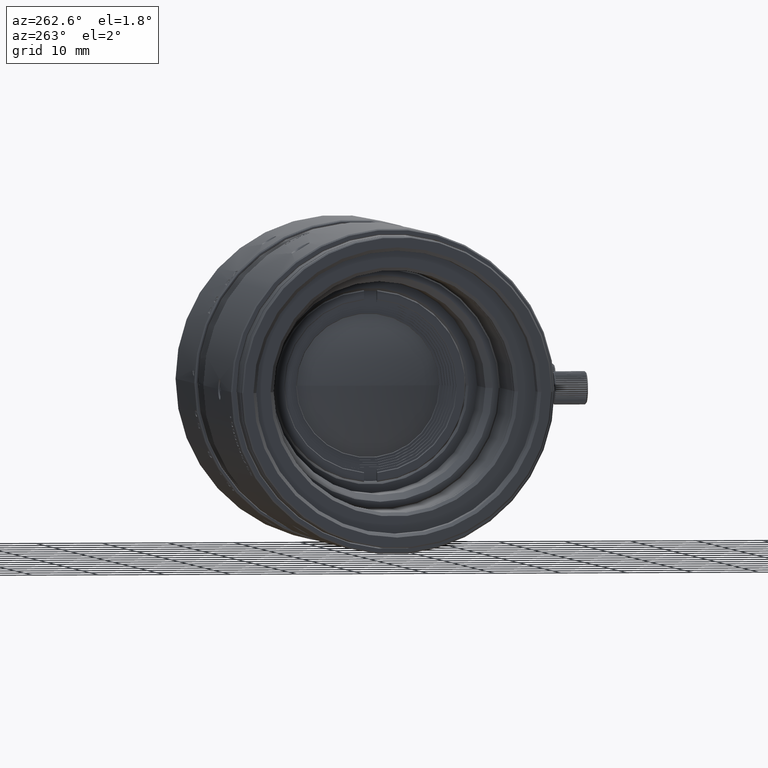
[diagram: clean part render]
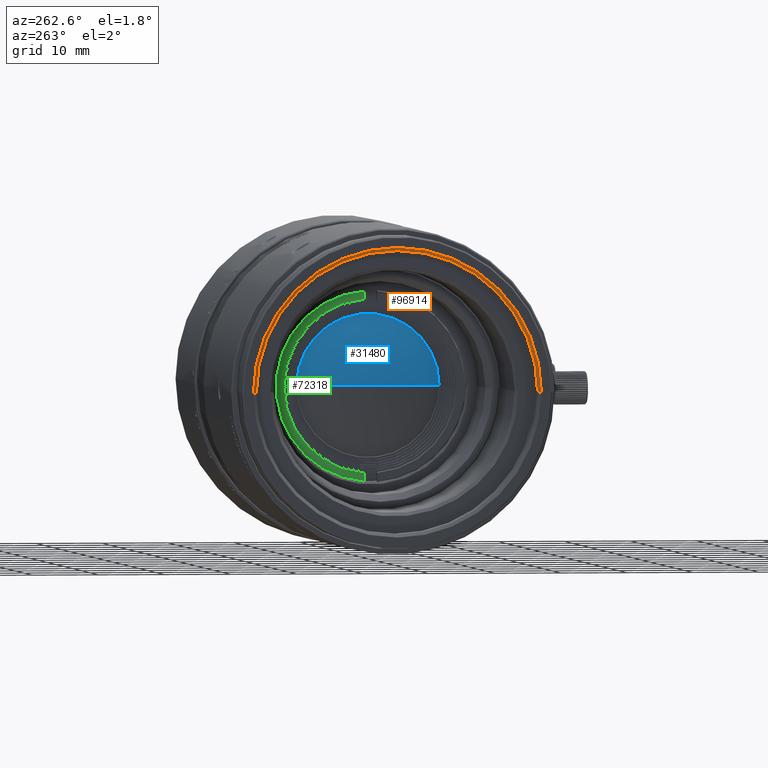
[diagram: same view with three faces highlighted in distinct colors, each labeled with its STEP entity id]
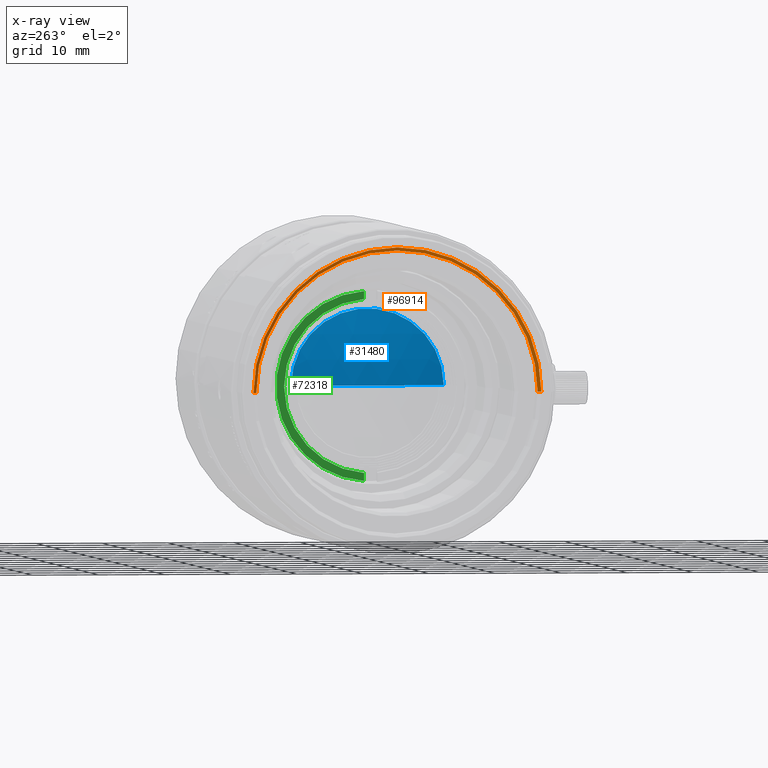
[diagram: x-ray of the same camera — body ghosted, the three highlighted faces saturated]
A machine part, auxiliary view with three faces highlighted in distinct colors.
The next image is the same camera in x-ray (body ghosted, the three faces saturated) — at least one of them is partly hidden behind the body in this view.
Their STEP definitions:

[orange] entity #96914 — the highlighted conical surface has half-angle 45 deg.
#2338 = EDGE_CURVE ( 'NONE', #101532, #88885, #62388, .T. ) ;
#4753 = EDGE_CURVE ( 'NONE', #37352, #88885, #114750, .T. ) ;
#6278 = ORIENTED_EDGE ( 'NONE', *, *, #117313, .F. ) ;
#8149 = DIRECTION ( 'NONE',  ( -1.000000000000000000, -9.356645475057149723E-23, -3.595346242946000312E-12 ) ) ;
#20855 = AXIS2_PLACEMENT_3D ( 'NONE', #81777, #8149, #103691 ) ;
#23181 = DIRECTION ( 'NONE',  ( 0.000000000000000000, 1.000000000000000000, 4.856461817810000820E-14 ) ) ;
#28233 = CARTESIAN_POINT ( 'NONE',  ( -72.88699999995999690, 0.000000000000000000, 7.389644453273999594E-13 ) ) ;
#35596 = VECTOR ( 'NONE', #88654, 1000.000000000000000 ) ;
#37352 = VERTEX_POINT ( 'NONE', #53247 ) ;
#42020 = CARTESIAN_POINT ( 'NONE',  ( -73.38700000000000045, 21.80000000000000071, -4.466453821071000241E-10 ) ) ;
#42090 = ORIENTED_EDGE ( 'NONE', *, *, #2338, .F. ) ;
#43106 = CARTESIAN_POINT ( 'NONE',  ( -72.88700000000000045, 21.30000000000000071, -5.642720510269000508E-10 ) ) ;
#45497 = EDGE_LOOP ( 'NONE', ( #108666, #42090, #99475, #6278 ) ) ;
#53247 = CARTESIAN_POINT ( 'NONE',  ( -72.88700000000000045, -21.30000000000000071, 2.770821754596000143E-10 ) ) ;
#57497 = CARTESIAN_POINT ( 'NONE',  ( -73.38700000000000045, 21.80000000000000071, -4.466453821071000241E-10 ) ) ;
#60078 = DIRECTION ( 'NONE',  ( -1.000000000000000000, 1.244905023412578241E-25, -3.595346242946000312E-12 ) ) ;
#60948 = CARTESIAN_POINT ( 'NONE',  ( -72.88700000000000045, -21.30000000000000071, 2.770821754596000143E-10 ) ) ;
#62388 = CIRCLE ( 'NONE', #118874, 21.79999999998999627 ) ;
#65229 = VECTOR ( 'NONE', #66581, 1000.000000000000000 ) ;
#66581 = DIRECTION ( 'NONE',  ( -0.7071067811864980568, -0.7071067811865969777, 1.428781935618994078E-10 ) ) ;
#78091 = VERTEX_POINT ( 'NONE', #43106 ) ;
#81777 = CARTESIAN_POINT ( 'NONE',  ( -73.13699999997000134, 0.000000000000000000, -1.598721154553999933E-13 ) ) ;
#83839 = CARTESIAN_POINT ( 'NONE',  ( -73.38700000000000045, -21.80000000000000071, 3.781123150108999904E-10 ) ) ;
#85296 = CIRCLE ( 'NONE', #107918, 21.30000000000000071 ) ;
#88654 = DIRECTION ( 'NONE',  ( 0.7071067811864980568, -0.7071067811865969777, -1.663492304830994895E-10 ) ) ;
#88885 = VERTEX_POINT ( 'NONE', #83839 ) ;
#93771 = FACE_OUTER_BOUND ( 'NONE', #45497, .T. ) ;
#96914 = ADVANCED_FACE ( 'NONE', ( #93771 ), #111294, .F. ) ;
#99475 = ORIENTED_EDGE ( 'NONE', *, *, #114792, .T. ) ;
#101532 = VERTEX_POINT ( 'NONE', #42020 ) ;
#103691 = DIRECTION ( 'NONE',  ( 0.000000000000000000, -1.000000000000000000, 2.602432378637999875E-11 ) ) ;
#107918 = AXIS2_PLACEMENT_3D ( 'NONE', #28233, #60078, #112500 ) ;
#108666 = ORIENTED_EDGE ( 'NONE', *, *, #4753, .T. ) ;
#110220 = DIRECTION ( 'NONE',  ( 1.000000000000000000, -1.746066175067390209E-25, 3.595346242946000312E-12 ) ) ;
#111294 = CONICAL_SURFACE ( 'NONE', #20855, 21.55000000000999805, 0.7853981633986962807 ) ;
#112500 = DIRECTION ( 'NONE',  ( 0.000000000000000000, -1.000000000000000000, -3.462545577786999426E-14 ) ) ;
#114750 = LINE ( 'NONE', #60948, #65229 ) ;
#114792 = EDGE_CURVE ( 'NONE', #101532, #78091, #121888, .T. ) ;
#117313 = EDGE_CURVE ( 'NONE', #37352, #78091, #85296, .T. ) ;
#118874 = AXIS2_PLACEMENT_3D ( 'NONE', #132842, #110220, #23181 ) ;
#121888 = LINE ( 'NONE', #57497, #35596 ) ;
#132842 = CARTESIAN_POINT ( 'NONE',  ( -73.38699999995000667, 0.000000000000000000, -1.058708676093999959E-12 ) ) ;

[blue] entity #31480 — the highlighted spherical surface has radius 34.36 mm.
#4291 = EDGE_CURVE ( 'NONE', #43011, #61823, #73634, .T. ) ;
#12409 = CARTESIAN_POINT ( 'NONE',  ( -38.47057941388000302, 11.54999999998000071, 0.000000000000000000 ) ) ;
#23701 = ORIENTED_EDGE ( 'NONE', *, *, #4291, .F. ) ;
#26820 = AXIS2_PLACEMENT_3D ( 'NONE', #68304, #111484, #57663 ) ;
#31480 = ADVANCED_FACE ( 'NONE', ( #37401 ), #132285, .T. ) ;
#37401 = FACE_OUTER_BOUND ( 'NONE', #124932, .T. ) ;
#43011 = VERTEX_POINT ( 'NONE', #12409 ) ;
#47908 = DIRECTION ( 'NONE',  ( -2.358574955207999966E-12, -1.349907225128000004E-13, 1.000000000000000000 ) ) ;
#54148 = AXIS2_PLACEMENT_3D ( 'NONE', #101810, #121635, #69950 ) ;
#57663 = DIRECTION ( 'NONE',  ( 0.000000000000000000, 1.000000000000000000, 4.083954044897000114E-13 ) ) ;
#60240 = AXIS2_PLACEMENT_3D ( 'NONE', #69855, #47908, #122260 ) ;
#61823 = VERTEX_POINT ( 'NONE', #82091 ) ;
#68304 = CARTESIAN_POINT ( 'NONE',  ( -38.47057941386000834, 0.000000000000000000, -4.715783319407000342E-12 ) ) ;
#69855 = CARTESIAN_POINT ( 'NONE',  ( -6.110000000094000683, 0.000000000000000000, 8.104063546073999887E-11 ) ) ;
#69950 = DIRECTION ( 'NONE',  ( 0.000000000000000000, -1.000000000000000000, 2.026395416531001734E-13 ) ) ;
#73634 = CIRCLE ( 'NONE', #26820, 11.54999999996000071 ) ;
#80981 = EDGE_CURVE ( 'NONE', #43011, #61823, #82894, .T. ) ;
#82091 = CARTESIAN_POINT ( 'NONE',  ( -38.47057941386000834, -11.54999999996000071, 0.000000000000000000 ) ) ;
#82894 = CIRCLE ( 'NONE', #60240, 34.35999999990999498 ) ;
#101810 = CARTESIAN_POINT ( 'NONE',  ( -6.110000000094000683, 0.000000000000000000, -8.104063546073999887E-11 ) ) ;
#111484 = DIRECTION ( 'NONE',  ( 1.000000000000000000, 9.632311728514470354E-25, -2.358574955207999966E-12 ) ) ;
#117390 = ORIENTED_EDGE ( 'NONE', *, *, #80981, .T. ) ;
#121635 = DIRECTION ( 'NONE',  ( 2.358574955207999966E-12, 2.026395416531001734E-13, 1.000000000000000000 ) ) ;
#122260 = DIRECTION ( 'NONE',  ( -1.000000000000000000, 0.000000000000000000, -2.358574955207999966E-12 ) ) ;
#124932 = EDGE_LOOP ( 'NONE', ( #117390, #23701 ) ) ;
#132285 = SPHERICAL_SURFACE ( 'NONE', #54148, 34.35999999990999498 ) ;

[green] entity #72318 — the highlighted planar face has unit normal (1, 0, 0).
#7232 = CIRCLE ( 'NONE', #59249, 13.09999999996000142 ) ;
#11569 = VECTOR ( 'NONE', #87668, 1000.000000000000000 ) ;
#13743 = DIRECTION ( 'NONE',  ( -2.147878990872497907E-12, 0.07633587786242967965, -0.9970821599802958124 ) ) ;
#17385 = CARTESIAN_POINT ( 'NONE',  ( -42.16164515199999840, 7.658133391253000966, 0.000000000000000000 ) ) ;
#22940 = DIRECTION ( 'NONE',  ( -1.000000000000000000, -5.104984523197050510E-13, 2.912041337699365305E-15 ) ) ;
#28746 = ORIENTED_EDGE ( 'NONE', *, *, #93804, .T. ) ;
#29357 = CARTESIAN_POINT ( 'NONE',  ( -42.16164515196999929, 1.000000000001999956, 13.06177629577000054 ) ) ;
#29371 = FACE_OUTER_BOUND ( 'NONE', #123767, .T. ) ;
#35281 = EDGE_CURVE ( 'NONE', #120456, #112590, #122044, .T. ) ;
#38308 = VECTOR ( 'NONE', #44031, 1000.000000000000000 ) ;
#38643 = PLANE ( 'NONE',  #104364 ) ;
#44031 = DIRECTION ( 'NONE',  ( 2.141284981269000140E-11, 1.678138356415999979E-12, 1.000000000000000000 ) ) ;
#46114 = CARTESIAN_POINT ( 'NONE',  ( -42.16164515199999840, 1.000000000000000000, -14.26499211355999819 ) ) ;
#48357 = EDGE_CURVE ( 'NONE', #135441, #129538, #7232, .T. ) ;
#55475 = DIRECTION ( 'NONE',  ( 1.000000000000000000, 2.813749233610089794E-11, -1.137638448809464005E-23 ) ) ;
#59249 = AXIS2_PLACEMENT_3D ( 'NONE', #88736, #55475, #13743 ) ;
#61603 = CARTESIAN_POINT ( 'NONE',  ( -42.16164515199999840, 1.000000000000000000, 14.26499211355999819 ) ) ;
#68231 = EDGE_CURVE ( 'NONE', #112590, #135441, #77284, .T. ) ;
#69784 = DIRECTION ( 'NONE',  ( 1.000000000000000000, 0.000000000000000000, 0.000000000000000000 ) ) ;
#72318 = ADVANCED_FACE ( 'NONE', ( #29371 ), #38643, .F. ) ;
#77284 = LINE ( 'NONE', #46114, #38308 ) ;
#78143 = CARTESIAN_POINT ( 'NONE',  ( -42.16164515196999929, 1.000000000001999956, -13.06177629577000054 ) ) ;
#83959 = ORIENTED_EDGE ( 'NONE', *, *, #35281, .T. ) ;
#87668 = DIRECTION ( 'NONE',  ( -2.140103908471000313E-11, -1.792831597578999928E-12, 1.000000000000000000 ) ) ;
#88736 = CARTESIAN_POINT ( 'NONE',  ( -42.16164515177999306, 2.332356536423000331E-12, 0.000000000000000000 ) ) ;
#93804 = EDGE_CURVE ( 'NONE', #129538, #120456, #118125, .T. ) ;
#97108 = CARTESIAN_POINT ( 'NONE',  ( -42.16164515199999840, 1.000000000000000000, -14.26499211355999819 ) ) ;
#100731 = CARTESIAN_POINT ( 'NONE',  ( -42.16164515199999840, 2.753353101073000221E-12, 0.000000000000000000 ) ) ;
#104364 = AXIS2_PLACEMENT_3D ( 'NONE', #17385, #69784, #136983 ) ;
#106819 = CARTESIAN_POINT ( 'NONE',  ( -42.16164515196999929, 1.000000000001999956, 13.06177629577000054 ) ) ;
#111361 = ORIENTED_EDGE ( 'NONE', *, *, #48357, .T. ) ;
#112590 = VERTEX_POINT ( 'NONE', #97108 ) ;
#118125 = LINE ( 'NONE', #106819, #11569 ) ;
#120456 = VERTEX_POINT ( 'NONE', #61603 ) ;
#122044 = CIRCLE ( 'NONE', #124252, 14.29999999999999538 ) ;
#123767 = EDGE_LOOP ( 'NONE', ( #83959, #136706, #111361, #28746 ) ) ;
#124252 = AXIS2_PLACEMENT_3D ( 'NONE', #100731, #22940, #131215 ) ;
#129538 = VERTEX_POINT ( 'NONE', #29357 ) ;
#131215 = DIRECTION ( 'NONE',  ( -3.299613884375466156E-14, 0.06993006992989232729, 0.9975518960533333868 ) ) ;
#135441 = VERTEX_POINT ( 'NONE', #78143 ) ;
#136706 = ORIENTED_EDGE ( 'NONE', *, *, #68231, .T. ) ;
#136983 = DIRECTION ( 'NONE',  ( 0.000000000000000000, 1.000000000000000000, 0.000000000000000000 ) ) ;